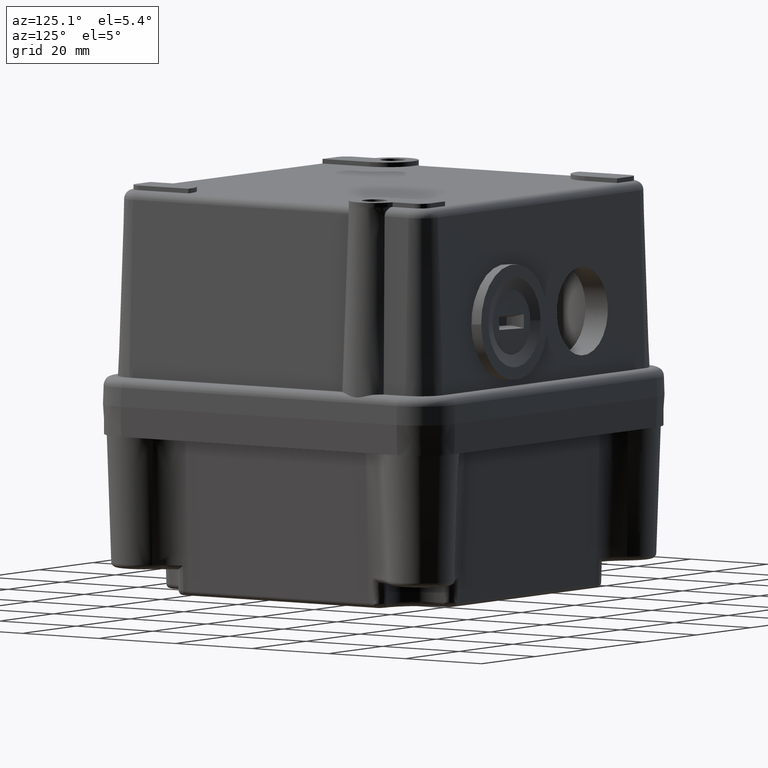
[diagram: clean part render]
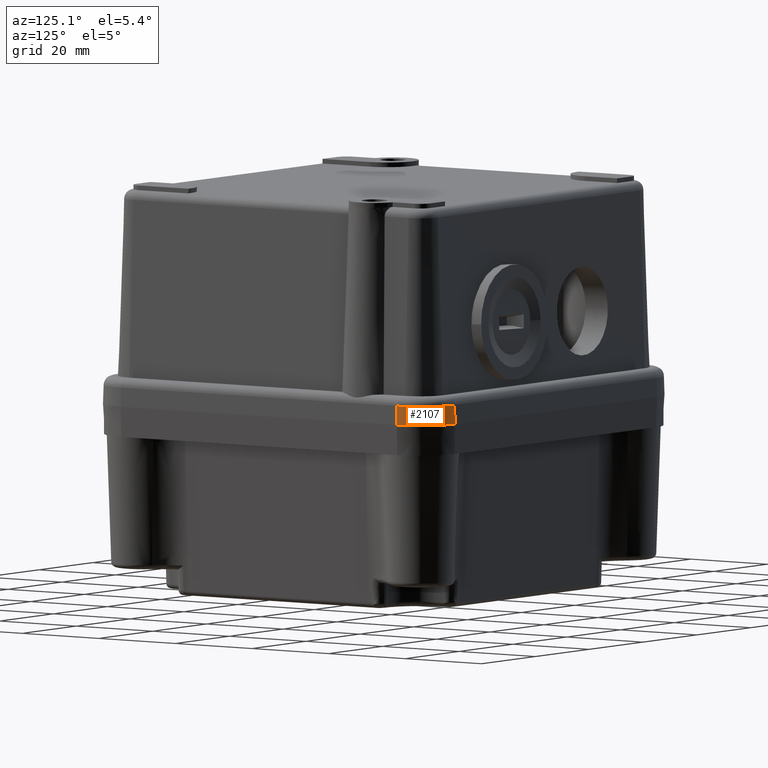
[diagram: same view with one face highlighted and labeled with its STEP entity id]
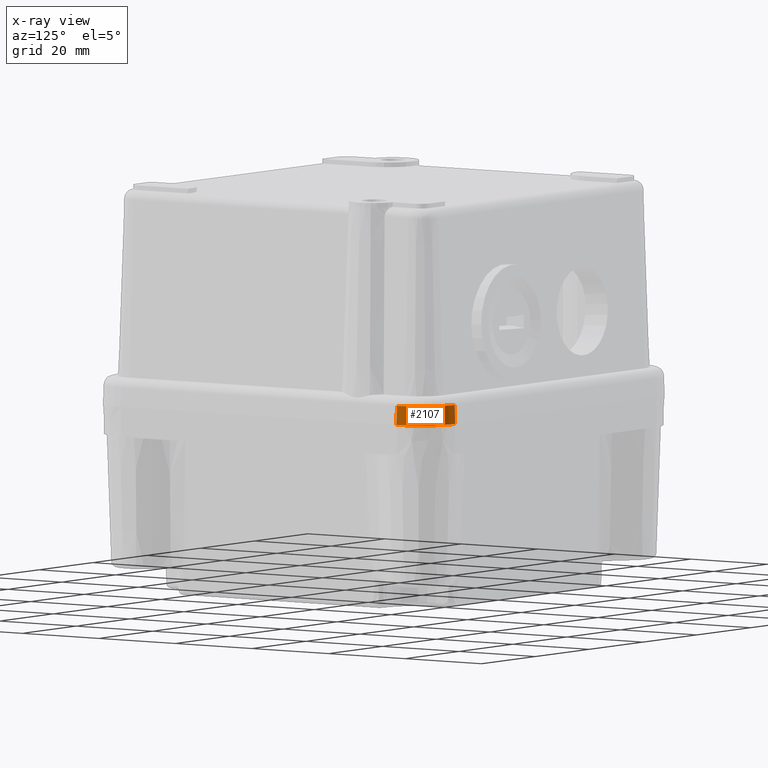
[diagram: x-ray of the same camera — body ghosted, the highlighted face saturated]
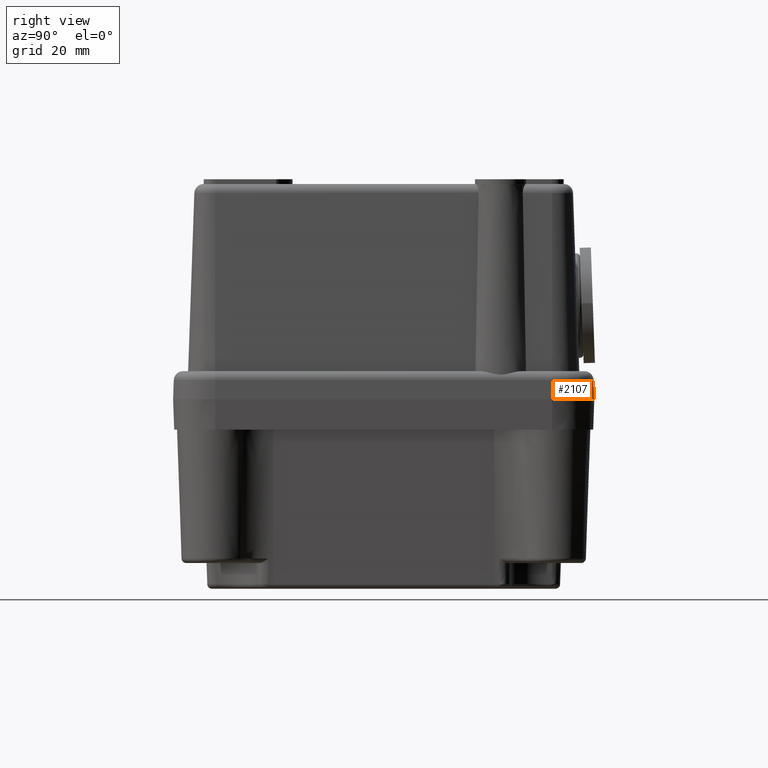
[diagram: same view with one face highlighted and labeled with its STEP entity id]
A machine part, auxiliary view. The second image highlights one B-rep face of the part: STEP entity #2107.
The next image is the same camera in x-ray: the body ghosted, the highlighted face saturated — about 0% of this face is hidden behind the body in this view.
A second angle (right view) of the same face is appended — the face is thin or edge-on in the first view.
In plain terms, the highlighted conical surface has half-angle 2 deg.
Its self-contained STEP definition (entity closure, byte-faithful):
#1822=CARTESIAN_POINT('',(77.742971050357951,54.099587009436490,4.069798993405007));
#1823=VERTEX_POINT('',#1822);
#1920=CARTESIAN_POINT('',(68.885091562884384,62.957466496910051,4.069798993405006));
#1921=VERTEX_POINT('',#1920);
#1939=CARTESIAN_POINT('',(68.885091562884384,54.099587009436490,4.069798993405006));
#1940=DIRECTION('',(0.0,0.0,1.0));
#1941=DIRECTION('',(0.707106781186548,0.707106781186547,0.0));
#1942=AXIS2_PLACEMENT_3D('',#1939,#1940,#1941);
#1943=CIRCLE('',#1942,8.857879487473539);
#1944=EDGE_CURVE('',#1823,#1921,#1943,.T.);
#2076=CARTESIAN_POINT('',(68.885091562884384,54.099587009436490,0.0));
#2077=DIRECTION('',(0.0,0.0,-1.0));
#2078=DIRECTION('',(1.0,0.0,0.0));
#2079=AXIS2_PLACEMENT_3D('',#2076,#2077,#2078);
#2080=CONICAL_SURFACE('',#2079,8.999999999999986,2.0);
#2081=ORIENTED_EDGE('',*,*,#1944,.F.);
#2082=CARTESIAN_POINT('',(77.885091562884398,54.099587009436490,0.0));
#2083=VERTEX_POINT('',#2082);
#2084=CARTESIAN_POINT('',(77.885091562884398,54.099587009436490,0.0));
#2085=DIRECTION('',(-0.034899496702502,0.0,0.999390827019096));
#2086=VECTOR('',#2085,4.072279716178787);
#2087=LINE('',#2084,#2086);
#2088=EDGE_CURVE('',#2083,#1823,#2087,.T.);
#2089=ORIENTED_EDGE('',*,*,#2088,.F.);
#2090=CARTESIAN_POINT('',(68.885091562884384,63.099587009436497,0.0));
#2091=VERTEX_POINT('',#2090);
#2092=CARTESIAN_POINT('',(68.885091562884384,54.099587009436490,0.0));
#2093=DIRECTION('',(0.0,0.0,1.0));
#2094=DIRECTION('',(1.0,0.0,0.0));
#2095=AXIS2_PLACEMENT_3D('',#2092,#2093,#2094);
#2096=CIRCLE('',#2095,8.999999999999986);
#2097=EDGE_CURVE('',#2083,#2091,#2096,.T.);
#2098=ORIENTED_EDGE('',*,*,#2097,.T.);
#2099=CARTESIAN_POINT('',(68.885091562884384,63.099587009436497,0.0));
#2100=DIRECTION('',(0.0,-0.034899496702502,0.999390827019096));
#2101=VECTOR('',#2100,4.072279716178787);
#2102=LINE('',#2099,#2101);
#2103=EDGE_CURVE('',#2091,#1921,#2102,.T.);
#2104=ORIENTED_EDGE('',*,*,#2103,.T.);
#2105=EDGE_LOOP('',(#2081,#2089,#2098,#2104));
#2106=FACE_OUTER_BOUND('',#2105,.T.);
#2107=ADVANCED_FACE('',(#2106),#2080,.T.);